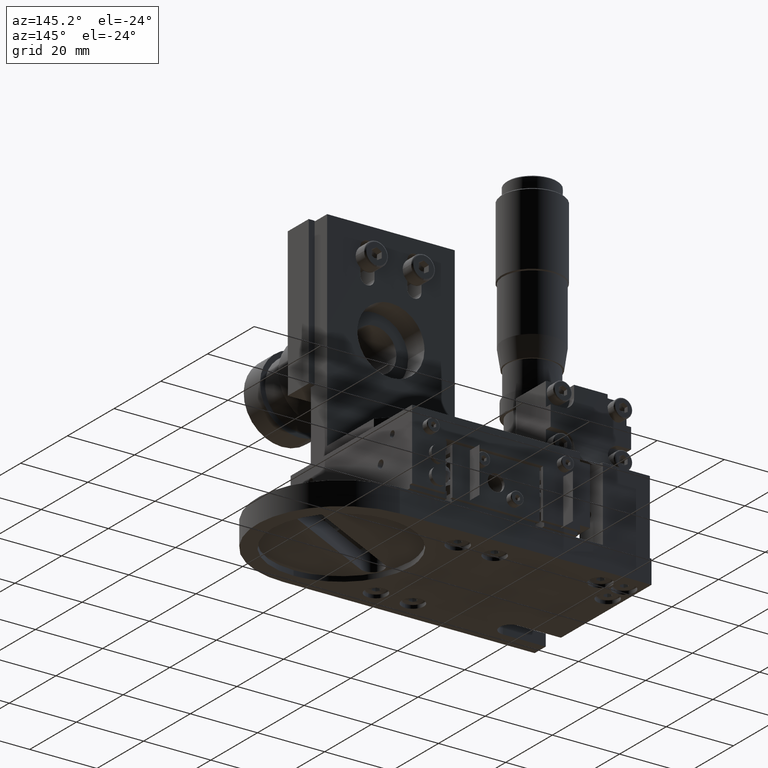
[diagram: clean part render]
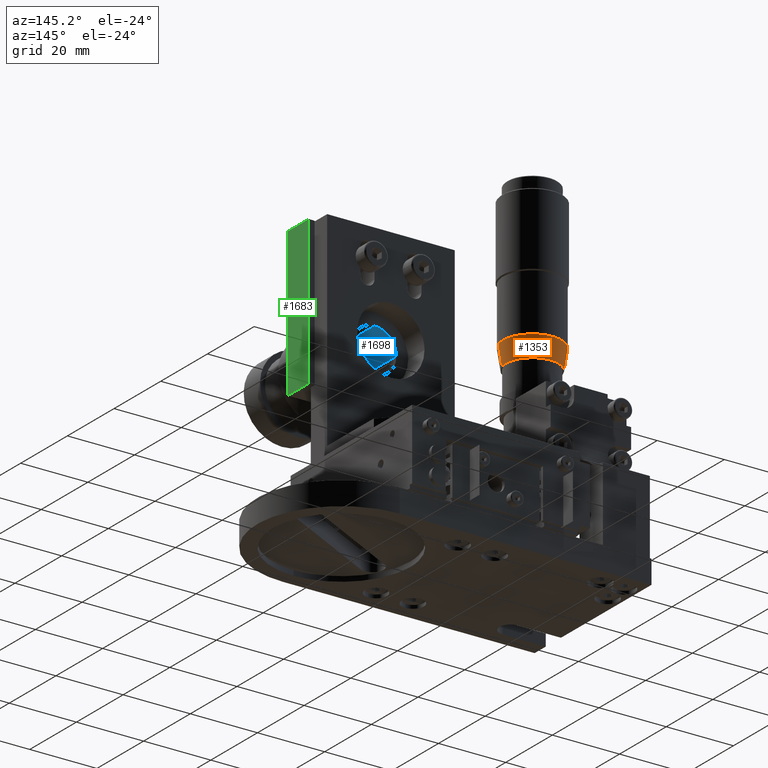
[diagram: same view with three faces highlighted in distinct colors, each labeled with its STEP entity id]
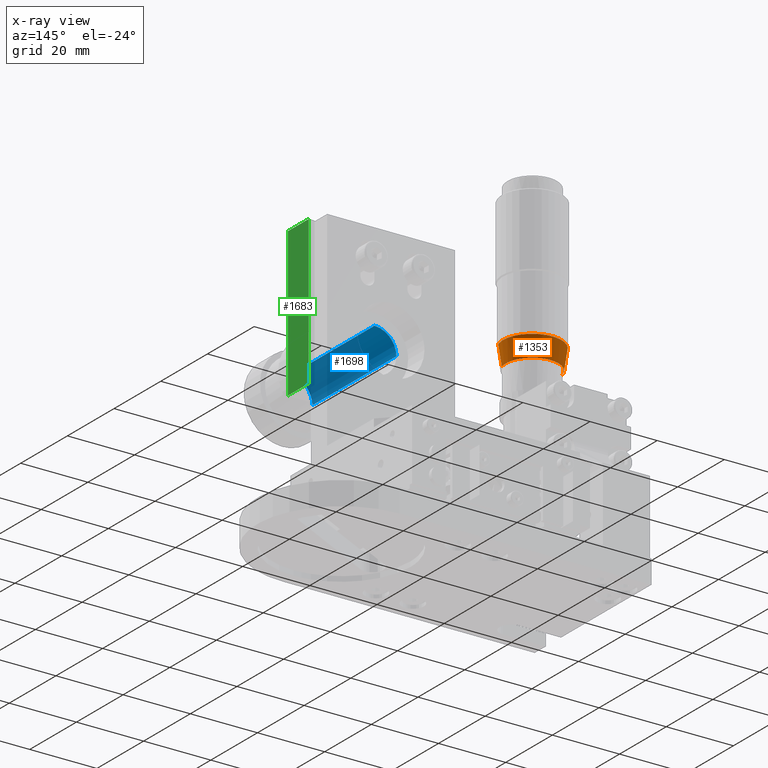
[diagram: x-ray of the same camera — body ghosted, the three highlighted faces saturated]
A machine part, auxiliary view with three faces highlighted in distinct colors.
The next image is the same camera in x-ray (body ghosted, the three faces saturated) — at least one of them is partly hidden behind the body in this view.
Their STEP definitions:

[orange] entity #1353 — the highlighted face is a freeform B-spline surface patch.
#196=B_SPLINE_SURFACE_WITH_KNOTS('',1,1,((#40397,#40398),(#40399,#40400)),
 .UNSPECIFIED.,.F.,.F.,.F.,(2,2),(2,2),(-14.8283664288791,14.8283664288791),
(-14.8283664288791,14.8283664288791),.UNSPECIFIED.);
#1353=ADVANCED_FACE('',(#2341),#35790,.T.);
#2341=FACE_OUTER_BOUND('',#3341,.T.);
#3341=EDGE_LOOP('',(#5112,#5113,#5114,#5115));
#5112=ORIENTED_EDGE('',*,*,#25423,.F.);
#5113=ORIENTED_EDGE('',*,*,#25424,.F.);
#5114=ORIENTED_EDGE('',*,*,#25417,.F.);
#5115=ORIENTED_EDGE('',*,*,#25425,.F.);
#9964=(
BOUNDED_CURVE()
B_SPLINE_CURVE(2,(#49342,#49343,#49344,#49345,#49346),.UNSPECIFIED.,.F.,
 .F.)
B_SPLINE_CURVE_WITH_KNOTS((3,2,3),(-54.6637121724624,-40.9977841293469,
-27.3318560862313),.UNSPECIFIED.)
CURVE()
GEOMETRIC_REPRESENTATION_ITEM()
RATIONAL_B_SPLINE_CURVE((1.,0.70710678118655,1.,0.70710678118655,1.))
REPRESENTATION_ITEM('')
);
#9969=(
BOUNDED_CURVE()
B_SPLINE_CURVE(2,(#49389,#49390,#49391,#49392,#49393),.UNSPECIFIED.,.F.,
 .F.)
B_SPLINE_CURVE_WITH_KNOTS((3,2,3),(-24.5044226980002,-12.2522113490001,
0.),.UNSPECIFIED.)
CURVE()
GEOMETRIC_REPRESENTATION_ITEM()
RATIONAL_B_SPLINE_CURVE((1.,0.707106781186549,1.,0.707106781186549,1.))
REPRESENTATION_ITEM('')
);
#9970=(
BOUNDED_CURVE()
B_SPLINE_CURVE(2,(#49394,#49395,#49396,#49397,#49398),.UNSPECIFIED.,.F.,
 .F.)
B_SPLINE_CURVE_WITH_KNOTS((3,2,3),(-24.5044226980002,-12.2522113490001,
0.),.UNSPECIFIED.)
CURVE()
GEOMETRIC_REPRESENTATION_ITEM()
RATIONAL_B_SPLINE_CURVE((1.,0.707106781186548,1.,0.707106781186548,1.))
REPRESENTATION_ITEM('')
);
#12354=PCURVE('',#35787,#17644);
#12365=PCURVE('',#196,#17655);
#12371=PCURVE('',#35789,#17661);
#12373=PCURVE('',#35789,#17663);
#12374=PCURVE('',#35790,#17664);
#12375=PCURVE('',#35790,#17665);
#12376=PCURVE('',#35790,#17666);
#12377=PCURVE('',#35790,#17667);
#17644=DEFINITIONAL_REPRESENTATION('',(#28614),#78139);
#17655=DEFINITIONAL_REPRESENTATION('',(#9970),#78139);
#17661=DEFINITIONAL_REPRESENTATION('',(#28629),#78139);
#17663=DEFINITIONAL_REPRESENTATION('',(#28632),#78139);
#17664=DEFINITIONAL_REPRESENTATION('',(#28633),#78139);
#17665=DEFINITIONAL_REPRESENTATION('',(#28634),#78139);
#17666=DEFINITIONAL_REPRESENTATION('',(#28635),#78139);
#17667=DEFINITIONAL_REPRESENTATION('',(#28636),#78139);
#22638=SURFACE_CURVE('',#9964,(#12354,#12376),.PCURVE_S1.);
#22644=SURFACE_CURVE('',#9969,(#12365,#12374),.PCURVE_S1.);
#22645=SURFACE_CURVE('',#28628,(#12371,#12375),.PCURVE_S1.);
#22646=SURFACE_CURVE('',#28631,(#12373,#12377),.PCURVE_S1.);
#25417=EDGE_CURVE('',#34147,#34153,#22638,.T.);
#25423=EDGE_CURVE('',#34151,#34150,#22644,.T.);
#25424=EDGE_CURVE('',#34153,#34151,#22645,.T.);
#25425=EDGE_CURVE('',#34150,#34147,#22646,.T.);
#28614=B_SPLINE_CURVE_WITH_KNOTS('',1,(#49347,#49348),.UNSPECIFIED.,.F.,
 .F.,(2,2),(-54.6637121724624,-27.3318560862313),.UNSPECIFIED.);
#28628=B_SPLINE_CURVE_WITH_KNOTS('',1,(#49416,#49417),.UNSPECIFIED.,.F.,
 .F.,(2,2),(-58.6488704068545,-52.5817458820075),.UNSPECIFIED.);
#28629=B_SPLINE_CURVE_WITH_KNOTS('',1,(#49418,#49419),.UNSPECIFIED.,.F.,
 .F.,(2,2),(-58.6488704068545,-52.5817458820075),.UNSPECIFIED.);
#28631=B_SPLINE_CURVE_WITH_KNOTS('',1,(#49422,#49423),.UNSPECIFIED.,.F.,
 .F.,(2,2),(0.,6.06712452484701),.UNSPECIFIED.);
#28632=B_SPLINE_CURVE_WITH_KNOTS('',1,(#49424,#49425),.UNSPECIFIED.,.F.,
 .F.,(2,2),(0.,6.06712452484701),.UNSPECIFIED.);
#28633=B_SPLINE_CURVE_WITH_KNOTS('',1,(#49426,#49427),.UNSPECIFIED.,.F.,
 .F.,(2,2),(-24.5044226980002,0.),.UNSPECIFIED.);
#28634=B_SPLINE_CURVE_WITH_KNOTS('',1,(#49428,#49429),.UNSPECIFIED.,.F.,
 .F.,(2,2),(-58.6488704068545,-52.5817458820075),.UNSPECIFIED.);
#28635=B_SPLINE_CURVE_WITH_KNOTS('',1,(#49430,#49431),.UNSPECIFIED.,.F.,
 .F.,(2,2),(-54.6637121724624,-27.3318560862313),.UNSPECIFIED.);
#28636=B_SPLINE_CURVE_WITH_KNOTS('',1,(#49432,#49433),.UNSPECIFIED.,.F.,
 .F.,(2,2),(0.,6.06712452484701),.UNSPECIFIED.);
#34147=VERTEX_POINT('',#45948);
#34150=VERTEX_POINT('',#45951);
#34151=VERTEX_POINT('',#45952);
#34153=VERTEX_POINT('',#45954);
#35787=(
BOUNDED_SURFACE()
B_SPLINE_SURFACE(2,1,((#40361,#40362),(#40363,#40364),(#40365,#40366),(#40367,
#40368),(#40369,#40370),(#40371,#40372),(#40373,#40374),(#40375,#40376),
(#40377,#40378)),.UNSPECIFIED.,.T.,.F.,.F.)
B_SPLINE_SURFACE_WITH_KNOTS((3,2,2,2,3),(2,2),(0.,1.5707963267949,3.14159265358979,
4.71238898038469,6.28318530717959),(0.,20.6400000000001),.UNSPECIFIED.)
GEOMETRIC_REPRESENTATION_ITEM()
RATIONAL_B_SPLINE_SURFACE(((1.,1.),(0.707106781186548,0.707106781186548),
(1.,1.),(0.707106781186548,0.707106781186548),(1.,1.),(0.707106781186548,
0.707106781186548),(1.,1.),(0.707106781186548,0.707106781186548),(1.,1.)))
REPRESENTATION_ITEM('')
SURFACE()
);
#35789=(
BOUNDED_SURFACE()
B_SPLINE_SURFACE(2,1,((#40401,#40402),(#40403,#40404),(#40405,#40406),(#40407,
#40408),(#40409,#40410),(#40411,#40412),(#40413,#40414),(#40415,#40416),
(#40417,#40418)),.UNSPECIFIED.,.T.,.F.,.F.)
B_SPLINE_SURFACE_WITH_KNOTS((3,2,2,2,3),(2,2),(0.,1.5707963267949,3.14159265358979,
4.71238898038469,6.28318530717959),(0.,64.6350999380369),.UNSPECIFIED.)
GEOMETRIC_REPRESENTATION_ITEM()
RATIONAL_B_SPLINE_SURFACE(((1.,1.),(0.707106781186548,0.707106781186548),
(1.,1.),(0.707106781186548,0.707106781186548),(1.,1.),(0.707106781186548,
0.707106781186548),(1.,1.),(0.707106781186548,0.707106781186548),(1.,1.)))
REPRESENTATION_ITEM('')
SURFACE()
);
#35790=(
BOUNDED_SURFACE()
B_SPLINE_SURFACE(2,1,((#40419,#40420),(#40421,#40422),(#40423,#40424),(#40425,
#40426),(#40427,#40428),(#40429,#40430),(#40431,#40432),(#40433,#40434),
(#40435,#40436)),.UNSPECIFIED.,.T.,.F.,.F.)
B_SPLINE_SURFACE_WITH_KNOTS((3,2,2,2,3),(2,2),(0.,1.5707963267949,3.14159265358979,
4.71238898038469,6.28318530717959),(0.,64.6350999380369),.UNSPECIFIED.)
GEOMETRIC_REPRESENTATION_ITEM()
RATIONAL_B_SPLINE_SURFACE(((1.,1.),(0.707106781186548,0.707106781186548),
(1.,1.),(0.707106781186548,0.707106781186548),(1.,1.),(0.707106781186548,
0.707106781186548),(1.,1.),(0.707106781186548,0.707106781186548),(1.,1.)))
REPRESENTATION_ITEM('')
SURFACE()
);
#40361=CARTESIAN_POINT('',(163.115088182005,1.61700786795749,-20.2824289338224));
#40362=CARTESIAN_POINT('',(163.115088182005,-19.0229921320426,-20.2824289338225));
#40363=CARTESIAN_POINT('',(171.815088182005,1.61700786795749,-20.2824289338224));
#40364=CARTESIAN_POINT('',(171.815088182005,-19.0229921320426,-20.2824289338225));
#40365=CARTESIAN_POINT('',(171.815088182005,1.61700786795747,-11.5824289338224));
#40366=CARTESIAN_POINT('',(171.815088182005,-19.0229921320426,-11.5824289338224));
#40367=CARTESIAN_POINT('',(171.815088182005,1.61700786795746,-2.88242893382241));
#40368=CARTESIAN_POINT('',(171.815088182005,-19.0229921320427,-2.88242893382244));
#40369=CARTESIAN_POINT('',(163.115088182005,1.61700786795746,-2.88242893382241));
#40370=CARTESIAN_POINT('',(163.115088182005,-19.0229921320427,-2.88242893382244));
#40371=CARTESIAN_POINT('',(154.415088182005,1.61700786795746,-2.88242893382241));
#40372=CARTESIAN_POINT('',(154.415088182005,-19.0229921320427,-2.88242893382244));
#40373=CARTESIAN_POINT('',(154.415088182005,1.61700786795747,-11.5824289338224));
#40374=CARTESIAN_POINT('',(154.415088182005,-19.0229921320426,-11.5824289338224));
#40375=CARTESIAN_POINT('',(154.415088182005,1.61700786795749,-20.2824289338224));
#40376=CARTESIAN_POINT('',(154.415088182005,-19.0229921320426,-20.2824289338224));
#40377=CARTESIAN_POINT('',(163.115088182005,1.61700786795749,-20.2824289338224));
#40378=CARTESIAN_POINT('',(163.115088182005,-19.0229921320426,-20.2824289338225));
#40397=CARTESIAN_POINT('',(172.859339318472,5.79700786795745,-30.1515019232768));
#40398=CARTESIAN_POINT('',(181.684161171459,5.7970078679574,-1.8381777973557));
#40399=CARTESIAN_POINT('',(144.546015192551,5.79700786795742,-21.3266800702891));
#40400=CARTESIAN_POINT('',(153.370837045538,5.79700786795737,6.98664405563202));
#40401=CARTESIAN_POINT('',(163.115088182005,57.7970078679575,-11.5824289338223));
#40402=CARTESIAN_POINT('',(153.961411240537,-6.12299213204267,-8.72937049571764));
#40403=CARTESIAN_POINT('',(163.115088182005,57.7970078679575,-11.5824289338223));
#40404=CARTESIAN_POINT('',(151.108352802432,-6.12299213204265,-17.8830474371854));
#40405=CARTESIAN_POINT('',(163.115088182005,57.7970078679575,-11.5824289338223));
#40406=CARTESIAN_POINT('',(160.2620297439,-6.12299213204263,-20.7361058752902));
#40407=CARTESIAN_POINT('',(163.115088182005,57.7970078679575,-11.5824289338223));
#40408=CARTESIAN_POINT('',(169.415706685368,-6.12299213204263,-23.589164313395));
#40409=CARTESIAN_POINT('',(163.115088182005,57.7970078679575,-11.5824289338223));
#40410=CARTESIAN_POINT('',(172.268765123473,-6.12299213204264,-14.4354873719272));
#40411=CARTESIAN_POINT('',(163.115088182005,57.7970078679575,-11.5824289338223));
#40412=CARTESIAN_POINT('',(175.121823561578,-6.12299213204266,-5.28181043045939));
#40413=CARTESIAN_POINT('',(163.115088182005,57.7970078679575,-11.5824289338223));
#40414=CARTESIAN_POINT('',(165.96814662011,-6.12299213204268,-2.42875199235461));
#40415=CARTESIAN_POINT('',(163.115088182005,57.7970078679575,-11.5824289338223));
#40416=CARTESIAN_POINT('',(156.814469678642,-6.12299213204268,0.424306445750169));
#40417=CARTESIAN_POINT('',(163.115088182005,57.7970078679575,-11.5824289338223));
#40418=CARTESIAN_POINT('',(153.961411240537,-6.12299213204267,-8.72937049571764));
#40419=CARTESIAN_POINT('',(163.115088182005,57.7970078679575,-11.5824289338223));
#40420=CARTESIAN_POINT('',(153.961411240537,-6.12299213204267,-8.72937049571764));
#40421=CARTESIAN_POINT('',(163.115088182005,57.7970078679575,-11.5824289338223));
#40422=CARTESIAN_POINT('',(151.108352802432,-6.12299213204265,-17.8830474371854));
#40423=CARTESIAN_POINT('',(163.115088182005,57.7970078679575,-11.5824289338223));
#40424=CARTESIAN_POINT('',(160.2620297439,-6.12299213204263,-20.7361058752902));
#40425=CARTESIAN_POINT('',(163.115088182005,57.7970078679575,-11.5824289338223));
#40426=CARTESIAN_POINT('',(169.415706685368,-6.12299213204263,-23.589164313395));
#40427=CARTESIAN_POINT('',(163.115088182005,57.7970078679575,-11.5824289338223));
#40428=CARTESIAN_POINT('',(172.268765123473,-6.12299213204264,-14.4354873719272));
#40429=CARTESIAN_POINT('',(163.115088182005,57.7970078679575,-11.5824289338223));
#40430=CARTESIAN_POINT('',(175.121823561578,-6.12299213204266,-5.28181043045939));
#40431=CARTESIAN_POINT('',(163.115088182005,57.7970078679575,-11.5824289338223));
#40432=CARTESIAN_POINT('',(165.96814662011,-6.12299213204268,-2.42875199235461));
#40433=CARTESIAN_POINT('',(163.115088182005,57.7970078679575,-11.5824289338223));
#40434=CARTESIAN_POINT('',(156.814469678642,-6.12299213204268,0.424306445750169));
#40435=CARTESIAN_POINT('',(163.115088182005,57.7970078679575,-11.5824289338223));
#40436=CARTESIAN_POINT('',(153.961411240537,-6.12299213204267,-8.72937049571764));
#45948=CARTESIAN_POINT('',(171.420990287842,-0.202992132042579,-14.1712491686483));
#45951=CARTESIAN_POINT('',(170.561759035514,5.79700786795742,-13.9034401788387));
#45952=CARTESIAN_POINT('',(155.668417328496,5.79700786795741,-9.26141768880606));
#45954=CARTESIAN_POINT('',(154.809186076168,-0.202992132042581,-8.99360869899642));
#49342=CARTESIAN_POINT('',(171.420990287842,-0.202992132042579,-14.1712491686483));
#49343=CARTESIAN_POINT('',(174.009810522668,-0.202992132042595,-5.86534706281089));
#49344=CARTESIAN_POINT('',(165.703908416831,-0.202992132042596,-3.27652682798497));
#49345=CARTESIAN_POINT('',(157.398006310994,-0.202992132042597,-0.687706593159039));
#49346=CARTESIAN_POINT('',(154.809186076168,-0.202992132042581,-8.99360869899642));
#49347=CARTESIAN_POINT('',(1.25268367302907,1.82000000000006));
#49348=CARTESIAN_POINT('',(4.39427632661884,1.82000000000006));
#49389=CARTESIAN_POINT('',(155.668417328496,5.79700786795741,-9.26141768880607));
#49390=CARTESIAN_POINT('',(157.989428573512,5.7970078679574,-1.81474683529667));
#49391=CARTESIAN_POINT('',(165.436099427021,5.7970078679574,-4.13575808031299));
#49392=CARTESIAN_POINT('',(172.882770280531,5.79700786795741,-6.45676932532932));
#49393=CARTESIAN_POINT('',(170.561759035514,5.79700786795742,-13.9034401788387));
#49394=CARTESIAN_POINT('',(7.8,-1.59872115546023E-13));
#49395=CARTESIAN_POINT('',(7.8000000000002,7.79999999999982));
#49396=CARTESIAN_POINT('',(1.70530256582424E-13,7.8));
#49397=CARTESIAN_POINT('',(-7.79999999999981,7.80000000000015));
#49398=CARTESIAN_POINT('',(-7.8,1.59872115546023E-13));
#49416=CARTESIAN_POINT('',(154.809186076168,-0.202992132042581,-8.99360869899642));
#49417=CARTESIAN_POINT('',(155.668417328496,5.79700786795741,-9.26141768880606));
#49418=CARTESIAN_POINT('',(0.,58.6488704068545));
#49419=CARTESIAN_POINT('',(0.,52.5817458820075));
#49422=CARTESIAN_POINT('',(170.561759035514,5.79700786795742,-13.9034401788387));
#49423=CARTESIAN_POINT('',(171.420990287842,-0.202992132042579,-14.1712491686483));
#49424=CARTESIAN_POINT('',(3.14159265358979,52.5817458820075));
#49425=CARTESIAN_POINT('',(3.14159265358979,58.6488704068545));
#49426=CARTESIAN_POINT('',(6.28318530717959,52.5817458820075));
#49427=CARTESIAN_POINT('',(3.14159265358979,52.5817458820075));
#49428=CARTESIAN_POINT('',(6.28318530717959,58.6488704068545));
#49429=CARTESIAN_POINT('',(6.28318530717959,52.5817458820075));
#49430=CARTESIAN_POINT('',(3.14159265358979,58.6488704068545));
#49431=CARTESIAN_POINT('',(6.28318530717959,58.6488704068545));
#49432=CARTESIAN_POINT('',(3.14159265358979,52.5817458820075));
#49433=CARTESIAN_POINT('',(3.14159265358979,58.6488704068545));
#78139=(
GEOMETRIC_REPRESENTATION_CONTEXT(2)
PARAMETRIC_REPRESENTATION_CONTEXT()
REPRESENTATION_CONTEXT('pspace','')
);

[blue] entity #1698 — the highlighted face is a freeform B-spline surface patch.
#352=B_SPLINE_SURFACE_WITH_KNOTS('',1,1,((#44361,#44362),(#44363,#44364)),
 .UNSPECIFIED.,.F.,.F.,.F.,(2,2),(2,2),(-5.11907293417583,19.1209270658583),
(-12.122765408051,12.1173948197157),.UNSPECIFIED.);
#353=B_SPLINE_SURFACE_WITH_KNOTS('',1,1,((#44401,#44402),(#44403,#44404)),
 .UNSPECIFIED.,.F.,.F.,.F.,(2,2),(2,2),(-9.1200801138663,9.12008011386639),
(-15.6200000000001,2.62000000000002),.UNSPECIFIED.);
#1698=ADVANCED_FACE('',(#2686),#35979,.T.);
#2686=FACE_OUTER_BOUND('',#3762,.T.);
#3762=EDGE_LOOP('',(#7151,#7152,#7153,#7154));
#7151=ORIENTED_EDGE('',*,*,#26486,.T.);
#7152=ORIENTED_EDGE('',*,*,#26484,.F.);
#7153=ORIENTED_EDGE('',*,*,#26487,.T.);
#7154=ORIENTED_EDGE('',*,*,#26488,.T.);
#10655=(
BOUNDED_CURVE()
B_SPLINE_CURVE(2,(#58355,#58356,#58357),.UNSPECIFIED.,.F.,.F.)
B_SPLINE_CURVE_WITH_KNOTS((3,3),(0.,10.2101761241668),.UNSPECIFIED.)
CURVE()
GEOMETRIC_REPRESENTATION_ITEM()
RATIONAL_B_SPLINE_CURVE((1.,0.707106781186554,1.))
REPRESENTATION_ITEM('')
);
#10656=(
BOUNDED_CURVE()
B_SPLINE_CURVE(2,(#58358,#58359,#58360),.UNSPECIFIED.,.F.,.F.)
B_SPLINE_CURVE_WITH_KNOTS((3,3),(0.,10.2101761241668),.UNSPECIFIED.)
CURVE()
GEOMETRIC_REPRESENTATION_ITEM()
RATIONAL_B_SPLINE_CURVE((1.,0.707106781186548,1.))
REPRESENTATION_ITEM('')
);
#10659=(
BOUNDED_CURVE()
B_SPLINE_CURVE(2,(#58377,#58378,#58379),.UNSPECIFIED.,.F.,.F.)
B_SPLINE_CURVE_WITH_KNOTS((3,3),(0.,10.2101761241669),.UNSPECIFIED.)
CURVE()
GEOMETRIC_REPRESENTATION_ITEM()
RATIONAL_B_SPLINE_CURVE((1.,0.707106781186487,1.))
REPRESENTATION_ITEM('')
);
#10669=(
BOUNDED_CURVE()
B_SPLINE_CURVE(2,(#58427,#58428,#58429),.UNSPECIFIED.,.F.,.F.)
B_SPLINE_CURVE_WITH_KNOTS((3,3),(0.,10.2101761241669),.UNSPECIFIED.)
CURVE()
GEOMETRIC_REPRESENTATION_ITEM()
RATIONAL_B_SPLINE_CURVE((1.,0.707106781186548,1.))
REPRESENTATION_ITEM('')
);
#14411=PCURVE('',#352,#19701);
#14413=PCURVE('',#35979,#19703);
#14414=PCURVE('',#35979,#19704);
#14415=PCURVE('',#35979,#19705);
#14416=PCURVE('',#35979,#19706);
#14417=PCURVE('',#35980,#19707);
#14420=PCURVE('',#35980,#19710);
#14427=PCURVE('',#353,#19717);
#19701=DEFINITIONAL_REPRESENTATION('',(#10656),#78139);
#19703=DEFINITIONAL_REPRESENTATION('',(#31048),#78139);
#19704=DEFINITIONAL_REPRESENTATION('',(#31049),#78139);
#19705=DEFINITIONAL_REPRESENTATION('',(#31051),#78139);
#19706=DEFINITIONAL_REPRESENTATION('',(#31052),#78139);
#19707=DEFINITIONAL_REPRESENTATION('',(#31053),#78139);
#19710=DEFINITIONAL_REPRESENTATION('',(#31056),#78139);
#19717=DEFINITIONAL_REPRESENTATION('',(#10669),#78139);
#23705=SURFACE_CURVE('',#10655,(#14411,#14414),.PCURVE_S1.);
#23707=SURFACE_CURVE('',#31047,(#14413,#14420),.PCURVE_S1.);
#23708=SURFACE_CURVE('',#31050,(#14415,#14417),.PCURVE_S1.);
#23709=SURFACE_CURVE('',#10659,(#14416,#14427),.PCURVE_S1.);
#26484=EDGE_CURVE('',#34855,#34859,#23705,.T.);
#26486=EDGE_CURVE('',#34860,#34859,#23707,.T.);
#26487=EDGE_CURVE('',#34855,#34857,#23708,.T.);
#26488=EDGE_CURVE('',#34857,#34860,#23709,.T.);
#31047=B_SPLINE_CURVE_WITH_KNOTS('',1,(#58367,#58368),.UNSPECIFIED.,.F.,
 .F.,(2,2),(-39.7304983930271,-3.73049839302717),.UNSPECIFIED.);
#31048=B_SPLINE_CURVE_WITH_KNOTS('',1,(#58369,#58370),.UNSPECIFIED.,.F.,
 .F.,(2,2),(-39.7304983930271,-3.73049839302717),.UNSPECIFIED.);
#31049=B_SPLINE_CURVE_WITH_KNOTS('',1,(#58371,#58372),.UNSPECIFIED.,.F.,
 .F.,(2,2),(0.,10.2101761241668),.UNSPECIFIED.);
#31050=B_SPLINE_CURVE_WITH_KNOTS('',1,(#58373,#58374),.UNSPECIFIED.,.F.,
 .F.,(2,2),(-36.,0.),.UNSPECIFIED.);
#31051=B_SPLINE_CURVE_WITH_KNOTS('',1,(#58375,#58376),.UNSPECIFIED.,.F.,
 .F.,(2,2),(-36.,0.),.UNSPECIFIED.);
#31052=B_SPLINE_CURVE_WITH_KNOTS('',1,(#58380,#58381),.UNSPECIFIED.,.F.,
 .F.,(2,2),(0.,10.2101761241669),.UNSPECIFIED.);
#31053=B_SPLINE_CURVE_WITH_KNOTS('',1,(#58382,#58383),.UNSPECIFIED.,.F.,
 .F.,(2,2),(-36.,0.),.UNSPECIFIED.);
#31056=B_SPLINE_CURVE_WITH_KNOTS('',1,(#58388,#58389),.UNSPECIFIED.,.F.,
 .F.,(2,2),(-39.7304983930271,-3.73049839302717),.UNSPECIFIED.);
#34855=VERTEX_POINT('',#46656);
#34857=VERTEX_POINT('',#46658);
#34859=VERTEX_POINT('',#46660);
#34860=VERTEX_POINT('',#46661);
#35979=(
BOUNDED_SURFACE()
B_SPLINE_SURFACE(1,2,((#44365,#44366,#44367,#44368,#44369,#44370,#44371,
#44372,#44373),(#44374,#44375,#44376,#44377,#44378,#44379,#44380,#44381,
#44382)),.UNSPECIFIED.,.F.,.F.,.F.)
B_SPLINE_SURFACE_WITH_KNOTS((2,2),(3,2,2,2,3),(0.,43.4609967860543),(0.,
1.5707963267949,3.14159265358979,4.71238898038469,6.28318530717959),
 .UNSPECIFIED.)
GEOMETRIC_REPRESENTATION_ITEM()
RATIONAL_B_SPLINE_SURFACE(((1.,0.707106781186548,1.,0.707106781186548,1.,
0.707106781186548,1.,0.707106781186548,1.),(1.,0.707106781186548,1.,0.707106781186548,
1.,0.707106781186548,1.,0.707106781186548,1.)))
REPRESENTATION_ITEM('')
SURFACE()
);
#35980=(
BOUNDED_SURFACE()
B_SPLINE_SURFACE(1,2,((#44383,#44384,#44385,#44386,#44387,#44388,#44389,
#44390,#44391),(#44392,#44393,#44394,#44395,#44396,#44397,#44398,#44399,
#44400)),.UNSPECIFIED.,.F.,.F.,.F.)
B_SPLINE_SURFACE_WITH_KNOTS((2,2),(3,2,2,2,3),(0.,43.4609967860543),(0.,
1.5707963267949,3.14159265358979,4.71238898038469,6.28318530717959),
 .UNSPECIFIED.)
GEOMETRIC_REPRESENTATION_ITEM()
RATIONAL_B_SPLINE_SURFACE(((1.,0.707106781186548,1.,0.707106781186548,1.,
0.707106781186548,1.,0.707106781186548,1.),(1.,0.707106781186548,1.,0.707106781186548,
1.,0.707106781186548,1.,0.707106781186548,1.)))
REPRESENTATION_ITEM('')
SURFACE()
);
#44361=CARTESIAN_POINT('',(207.249516985911,-11.5539550427409,-33.0529590486087));
#44362=CARTESIAN_POINT('',(183.009362163801,-11.553955042775,-33.0691475622288));
#44363=CARTESIAN_POINT('',(207.249516985877,12.6860449572932,-33.0529590486086));
#44364=CARTESIAN_POINT('',(183.009362163767,12.6860449572591,-33.0691475622288));
#44365=CARTESIAN_POINT('',(188.626949653704,0.566044957258742,-29.3348966949267));
#44366=CARTESIAN_POINT('',(188.626949653704,7.06604495725872,-29.3348966949267));
#44367=CARTESIAN_POINT('',(195.126948204176,7.06604495725873,-29.3305557443084));
#44368=CARTESIAN_POINT('',(201.626946754649,7.06604495725873,-29.3262147936901));
#44369=CARTESIAN_POINT('',(201.626946754649,0.566044957258743,-29.3262147936901));
#44370=CARTESIAN_POINT('',(201.626946754649,-5.93395504274124,-29.3262147936901));
#44371=CARTESIAN_POINT('',(195.126948204176,-5.93395504274124,-29.3305557443084));
#44372=CARTESIAN_POINT('',(188.626949653704,-5.93395504274124,-29.3348966949267));
#44373=CARTESIAN_POINT('',(188.626949653704,0.566044957258742,-29.3348966949267));
#44374=CARTESIAN_POINT('',(188.655974583069,0.566044957258822,-72.7958837889965));
#44375=CARTESIAN_POINT('',(188.655974583069,7.0660449572583,-72.7958837889965));
#44376=CARTESIAN_POINT('',(195.155973133541,7.0660449572583,-72.7915428383781));
#44377=CARTESIAN_POINT('',(201.655971684013,7.06604495725831,-72.7872018877598));
#44378=CARTESIAN_POINT('',(201.655971684013,0.566044957258827,-72.7872018877598));
#44379=CARTESIAN_POINT('',(201.655971684013,-5.93395504274065,-72.7872018877598));
#44380=CARTESIAN_POINT('',(195.155973133541,-5.93395504274065,-72.7915428383782));
#44381=CARTESIAN_POINT('',(188.655974583069,-5.93395504274066,-72.7958837889965));
#44382=CARTESIAN_POINT('',(188.655974583069,0.566044957258822,-72.7958837889965));
#44383=CARTESIAN_POINT('',(188.626949653704,0.566044957258742,-29.3348966949267));
#44384=CARTESIAN_POINT('',(188.626949653704,7.06604495725872,-29.3348966949267));
#44385=CARTESIAN_POINT('',(195.126948204176,7.06604495725873,-29.3305557443084));
#44386=CARTESIAN_POINT('',(201.626946754649,7.06604495725873,-29.3262147936901));
#44387=CARTESIAN_POINT('',(201.626946754649,0.566044957258743,-29.3262147936901));
#44388=CARTESIAN_POINT('',(201.626946754649,-5.93395504274124,-29.3262147936901));
#44389=CARTESIAN_POINT('',(195.126948204176,-5.93395504274124,-29.3305557443084));
#44390=CARTESIAN_POINT('',(188.626949653704,-5.93395504274124,-29.3348966949267));
#44391=CARTESIAN_POINT('',(188.626949653704,0.566044957258742,-29.3348966949267));
#44392=CARTESIAN_POINT('',(188.655974583069,0.566044957258822,-72.7958837889965));
#44393=CARTESIAN_POINT('',(188.655974583069,7.0660449572583,-72.7958837889965));
#44394=CARTESIAN_POINT('',(195.155973133541,7.0660449572583,-72.7915428383781));
#44395=CARTESIAN_POINT('',(201.655971684013,7.06604495725831,-72.7872018877598));
#44396=CARTESIAN_POINT('',(201.655971684013,0.566044957258827,-72.7872018877598));
#44397=CARTESIAN_POINT('',(201.655971684013,-5.93395504274065,-72.7872018877598));
#44398=CARTESIAN_POINT('',(195.155973133541,-5.93395504274065,-72.7915428383782));
#44399=CARTESIAN_POINT('',(188.655974583069,-5.93395504274066,-72.7958837889965));
#44400=CARTESIAN_POINT('',(188.655974583069,0.566044957258822,-72.7958837889965));
#44401=CARTESIAN_POINT('',(204.27355984293,-8.55395504274118,-69.0549545361277));
#44402=CARTESIAN_POINT('',(204.27355984293,9.6860449572589,-69.0549545361277));
#44403=CARTESIAN_POINT('',(186.03340368283,-8.55395504274126,-69.0671360184078));
#44404=CARTESIAN_POINT('',(186.03340368283,9.68604495725882,-69.0671360184077));
#46656=CARTESIAN_POINT('',(195.129439574839,-5.93395504274119,-33.0610533054187));
#46658=CARTESIAN_POINT('',(195.15348176288,-5.93395504274104,-69.0610452772678));
#46660=CARTESIAN_POINT('',(188.629441024366,0.566044957258749,-33.0653942560371));
#46661=CARTESIAN_POINT('',(188.653483212407,0.566044957258815,-69.0653862278861));
#58355=CARTESIAN_POINT('',(195.129439574839,-5.93395504274121,-33.0610533054187));
#58356=CARTESIAN_POINT('',(188.629441024366,-5.93395504274121,-33.0653942560371));
#58357=CARTESIAN_POINT('',(188.629441024366,0.566044957258749,-33.0653942560371));
#58358=CARTESIAN_POINT('',(0.500927065840843,-0.00268529415854791));
#58359=CARTESIAN_POINT('',(0.500927065849986,6.49731470584141));
#58360=CARTESIAN_POINT('',(7.00092706584998,6.49731470583225));
#58367=CARTESIAN_POINT('',(188.653483212407,0.566044957258815,-69.0653862278861));
#58368=CARTESIAN_POINT('',(188.629441024366,0.566044957258749,-33.0653942560371));
#58369=CARTESIAN_POINT('',(39.7304983930271,6.28318530717959));
#58370=CARTESIAN_POINT('',(3.73049839302717,6.28318530717959));
#58371=CARTESIAN_POINT('',(3.7304983930271,4.71238898038465));
#58372=CARTESIAN_POINT('',(3.73049839302717,6.28318530717959));
#58373=CARTESIAN_POINT('',(195.129439574839,-5.93395504274119,-33.0610533054187));
#58374=CARTESIAN_POINT('',(195.15348176288,-5.93395504274104,-69.0610452772678));
#58375=CARTESIAN_POINT('',(3.7304983930271,4.71238898038465));
#58376=CARTESIAN_POINT('',(39.7304983930271,4.71238898038451));
#58377=CARTESIAN_POINT('',(195.15348176288,-5.93395504274105,-69.0610452772678));
#58378=CARTESIAN_POINT('',(188.653483212406,-5.93395504274205,-69.0653862278861));
#58379=CARTESIAN_POINT('',(188.653483212407,0.566044957258815,-69.0653862278861));
#58380=CARTESIAN_POINT('',(39.7304983930271,4.71238898038451));
#58381=CARTESIAN_POINT('',(39.7304983930271,6.28318530717959));
#58382=CARTESIAN_POINT('',(3.73049839302709,4.71238898038465));
#58383=CARTESIAN_POINT('',(39.7304983930271,4.71238898038451));
#58388=CARTESIAN_POINT('',(39.7304983930271,0.));
#58389=CARTESIAN_POINT('',(3.73049839302717,0.));
#58427=CARTESIAN_POINT('',(5.56157951950019E-14,-13.));
#58428=CARTESIAN_POINT('',(6.50000000000009,-13.));
#58429=CARTESIAN_POINT('',(6.50000000000003,-6.49999999999999));
#78139=(
GEOMETRIC_REPRESENTATION_CONTEXT(2)
PARAMETRIC_REPRESENTATION_CONTEXT()
REPRESENTATION_CONTEXT('pspace','')
);

[green] entity #1683 — the highlighted face is a freeform B-spline surface patch.
#341=B_SPLINE_SURFACE_WITH_KNOTS('',1,1,((#44245,#44246),(#44247,#44248)),
 .UNSPECIFIED.,.F.,.F.,.F.,(2,2),(2,2),(-25.3216912904326,25.3216912904326),
(-26.5211124790849,26.5211124790849),.UNSPECIFIED.);
#342=B_SPLINE_SURFACE_WITH_KNOTS('',1,1,((#44249,#44250),(#44251,#44252)),
 .UNSPECIFIED.,.F.,.F.,.F.,(2,2),(2,2),(-4.52018541316914,48.5220395448589),
(-1.0200801138664,10.0200801138664),.UNSPECIFIED.);
#343=B_SPLINE_SURFACE_WITH_KNOTS('',1,1,((#44253,#44254),(#44255,#44256)),
 .UNSPECIFIED.,.F.,.F.,.F.,(2,2),(2,2),(-4.32756129808531,46.3302465922384),
(-1.0537413216278,10.0537413216277),.UNSPECIFIED.);
#345=B_SPLINE_SURFACE_WITH_KNOTS('',1,1,((#44333,#44334),(#44335,#44336)),
 .UNSPECIFIED.,.F.,.F.,.F.,(2,2),(2,2),(-26.5211124790168,26.5211124790169),
(-21.2961654203259,-18.9590932807406),.UNSPECIFIED.);
#346=B_SPLINE_SURFACE_WITH_KNOTS('',1,1,((#44337,#44338),(#44339,#44340)),
 .UNSPECIFIED.,.F.,.F.,.F.,(2,2),(2,2),(-4.32756129808541,46.3302465922383),
(-1.05374132162779,10.0537413216279),.UNSPECIFIED.);
#1683=ADVANCED_FACE('',(#2671),#342,.T.);
#2671=FACE_OUTER_BOUND('',#3744,.T.);
#3744=EDGE_LOOP('',(#7071,#7072,#7073,#7074));
#7071=ORIENTED_EDGE('',*,*,#26462,.T.);
#7072=ORIENTED_EDGE('',*,*,#26463,.T.);
#7073=ORIENTED_EDGE('',*,*,#26451,.F.);
#7074=ORIENTED_EDGE('',*,*,#26464,.T.);
#14322=PCURVE('',#341,#19612);
#14333=PCURVE('',#342,#19623);
#14334=PCURVE('',#342,#19624);
#14335=PCURVE('',#342,#19625);
#14336=PCURVE('',#342,#19626);
#14341=PCURVE('',#343,#19631);
#14366=PCURVE('',#345,#19656);
#14375=PCURVE('',#346,#19665);
#19612=DEFINITIONAL_REPRESENTATION('',(#30953),#78139);
#19623=DEFINITIONAL_REPRESENTATION('',(#30961),#78139);
#19624=DEFINITIONAL_REPRESENTATION('',(#30963),#78139);
#19625=DEFINITIONAL_REPRESENTATION('',(#30964),#78139);
#19626=DEFINITIONAL_REPRESENTATION('',(#30966),#78139);
#19631=DEFINITIONAL_REPRESENTATION('',(#30973),#78139);
#19656=DEFINITIONAL_REPRESENTATION('',(#31006),#78139);
#19665=DEFINITIONAL_REPRESENTATION('',(#31021),#78139);
#23672=SURFACE_CURVE('',#30952,(#14322,#14335),.PCURVE_S1.);
#23683=SURFACE_CURVE('',#30960,(#14333,#14366),.PCURVE_S1.);
#23684=SURFACE_CURVE('',#30962,(#14334,#14341),.PCURVE_S1.);
#23685=SURFACE_CURVE('',#30965,(#14336,#14375),.PCURVE_S1.);
#26451=EDGE_CURVE('',#34836,#34837,#23672,.T.);
#26462=EDGE_CURVE('',#34846,#34847,#23683,.T.);
#26463=EDGE_CURVE('',#34847,#34837,#23684,.T.);
#26464=EDGE_CURVE('',#34836,#34846,#23685,.T.);
#30952=B_SPLINE_CURVE_WITH_KNOTS('',1,(#58042,#58043),.UNSPECIFIED.,.F.,
 .F.,(2,2),(0.,44.0018541316897),.UNSPECIFIED.);
#30953=B_SPLINE_CURVE_WITH_KNOTS('',1,(#58044,#58045),.UNSPECIFIED.,.F.,
 .F.,(2,2),(0.,44.0018541316897),.UNSPECIFIED.);
#30960=B_SPLINE_CURVE_WITH_KNOTS('',1,(#58120,#58121),.UNSPECIFIED.,.F.,
 .F.,(2,2),(0.,44.0018541316897),.UNSPECIFIED.);
#30961=B_SPLINE_CURVE_WITH_KNOTS('',1,(#58122,#58123),.UNSPECIFIED.,.F.,
 .F.,(2,2),(0.,44.0018541316897),.UNSPECIFIED.);
#30962=B_SPLINE_CURVE_WITH_KNOTS('',1,(#58124,#58125),.UNSPECIFIED.,.F.,
 .F.,(2,2),(0.,8.99999999999994),.UNSPECIFIED.);
#30963=B_SPLINE_CURVE_WITH_KNOTS('',1,(#58126,#58127),.UNSPECIFIED.,.F.,
 .F.,(2,2),(0.,8.99999999999994),.UNSPECIFIED.);
#30964=B_SPLINE_CURVE_WITH_KNOTS('',1,(#58128,#58129),.UNSPECIFIED.,.F.,
 .F.,(2,2),(0.,44.0018541316897),.UNSPECIFIED.);
#30965=B_SPLINE_CURVE_WITH_KNOTS('',1,(#58130,#58131),.UNSPECIFIED.,.F.,
 .F.,(2,2),(-9.00000000000004,0.),.UNSPECIFIED.);
#30966=B_SPLINE_CURVE_WITH_KNOTS('',1,(#58132,#58133),.UNSPECIFIED.,.F.,
 .F.,(2,2),(-9.00000000000004,0.),.UNSPECIFIED.);
#30973=B_SPLINE_CURVE_WITH_KNOTS('',1,(#58146,#58147),.UNSPECIFIED.,.F.,
 .F.,(2,2),(0.,8.99999999999994),.UNSPECIFIED.);
#31006=B_SPLINE_CURVE_WITH_KNOTS('',1,(#58212,#58213),.UNSPECIFIED.,.F.,
 .F.,(2,2),(0.,44.0018541316897),.UNSPECIFIED.);
#31021=B_SPLINE_CURVE_WITH_KNOTS('',1,(#58242,#58243),.UNSPECIFIED.,.F.,
 .F.,(2,2),(-9.00000000000004,0.),.UNSPECIFIED.);
#34836=VERTEX_POINT('',#46637);
#34837=VERTEX_POINT('',#46638);
#34846=VERTEX_POINT('',#46647);
#34847=VERTEX_POINT('',#46648);
#44245=CARTESIAN_POINT('',(220.453114794804,-32.9559945876314,-40.0441427359684));
#44246=CARTESIAN_POINT('',(220.453114794729,20.0862303705384,-40.0441427359684));
#44247=CARTESIAN_POINT('',(169.809743507625,-32.9559945877026,-40.0779643394964));
#44248=CARTESIAN_POINT('',(169.80974350755,20.0862303704672,-40.0779643394964));
#44249=CARTESIAN_POINT('',(216.126075318988,20.0862303704614,-30.0269501520241));
#44250=CARTESIAN_POINT('',(216.13344836366,20.0862303704615,-41.0671079177549));
#44251=CARTESIAN_POINT('',(216.126075319062,-32.9559945875666,-30.0269501520242));
#44252=CARTESIAN_POINT('',(216.133448363734,-32.9559945875665,-41.067107917755));
#44253=CARTESIAN_POINT('',(220.453613171825,-28.4358091743913,-29.9903988394782));
#44254=CARTESIAN_POINT('',(220.461031177001,-28.4358091743913,-41.0978790057185));
#44255=CARTESIAN_POINT('',(169.795816578405,-28.4358091744626,-30.0242300767841));
#44256=CARTESIAN_POINT('',(169.803234583581,-28.4358091744626,-41.1317102430244));
#44333=CARTESIAN_POINT('',(216.421579275396,-32.9559945875689,-31.0468331443931));
#44334=CARTESIAN_POINT('',(214.084507656988,-32.9559945875722,-31.0483939312776));
#44335=CARTESIAN_POINT('',(216.421579275321,20.0862303704648,-31.046833144393));
#44336=CARTESIAN_POINT('',(214.084507656913,20.0862303704615,-31.0483939312776));
#44337=CARTESIAN_POINT('',(169.795816578343,15.5660449572271,-30.024230076784));
#44338=CARTESIAN_POINT('',(169.803234583519,15.5660449572271,-41.1317102430244));
#44339=CARTESIAN_POINT('',(220.453613171763,15.5660449572984,-29.9903988394781));
#44340=CARTESIAN_POINT('',(220.461031176939,15.5660449572984,-41.0978790057185));
#46637=CARTESIAN_POINT('',(216.132767114835,15.5660449572923,-40.0470280313707));
#46638=CARTESIAN_POINT('',(216.132767114897,-28.4358091743974,-40.0470280313707));
#46647=CARTESIAN_POINT('',(216.126756567825,15.5660449572923,-31.0470300384084));
#46648=CARTESIAN_POINT('',(216.126756567887,-28.4358091743974,-31.0470300384085));
#58042=CARTESIAN_POINT('',(216.132767114835,15.5660449572923,-40.0470280313707));
#58043=CARTESIAN_POINT('',(216.132767114897,-28.4358091743974,-40.0470280313707));
#58044=CARTESIAN_POINT('',(-21.0013426470764,22.0009270658448));
#58045=CARTESIAN_POINT('',(-21.0013426470765,-22.0009270658449));
#58120=CARTESIAN_POINT('',(216.126756567825,15.5660449572923,-31.0470300384084));
#58121=CARTESIAN_POINT('',(216.126756567887,-28.4358091743974,-31.0470300384085));
#58122=CARTESIAN_POINT('',(0.,0.));
#58123=CARTESIAN_POINT('',(44.0018541316897,6.0087090840381E-14));
#58124=CARTESIAN_POINT('',(216.126756567887,-28.4358091743974,-31.0470300384085));
#58125=CARTESIAN_POINT('',(216.132767114897,-28.4358091743974,-40.0470280313707));
#58126=CARTESIAN_POINT('',(44.0018541316897,6.0087090840381E-14));
#58127=CARTESIAN_POINT('',(44.0018541316897,9.));
#58128=CARTESIAN_POINT('',(1.6512204522514E-14,9.00000000000004));
#58129=CARTESIAN_POINT('',(44.0018541316897,9.));
#58130=CARTESIAN_POINT('',(216.132767114835,15.5660449572923,-40.0470280313707));
#58131=CARTESIAN_POINT('',(216.126756567825,15.5660449572923,-31.0470300384084));
#58132=CARTESIAN_POINT('',(1.6512204522514E-14,9.00000000000004));
#58133=CARTESIAN_POINT('',(0.,0.));
#58146=CARTESIAN_POINT('',(0.,0.));
#58147=CARTESIAN_POINT('',(1.02309653804422E-13,8.99999999999994));
#58212=CARTESIAN_POINT('',(22.0009270658448,-21.0013426470764));
#58213=CARTESIAN_POINT('',(-22.0009270658449,-21.0013426470765));
#58242=CARTESIAN_POINT('',(42.0026852941529,9.00000000000006));
#58243=CARTESIAN_POINT('',(42.002685294153,1.61225199857284E-14));
#78139=(
GEOMETRIC_REPRESENTATION_CONTEXT(2)
PARAMETRIC_REPRESENTATION_CONTEXT()
REPRESENTATION_CONTEXT('pspace','')
);